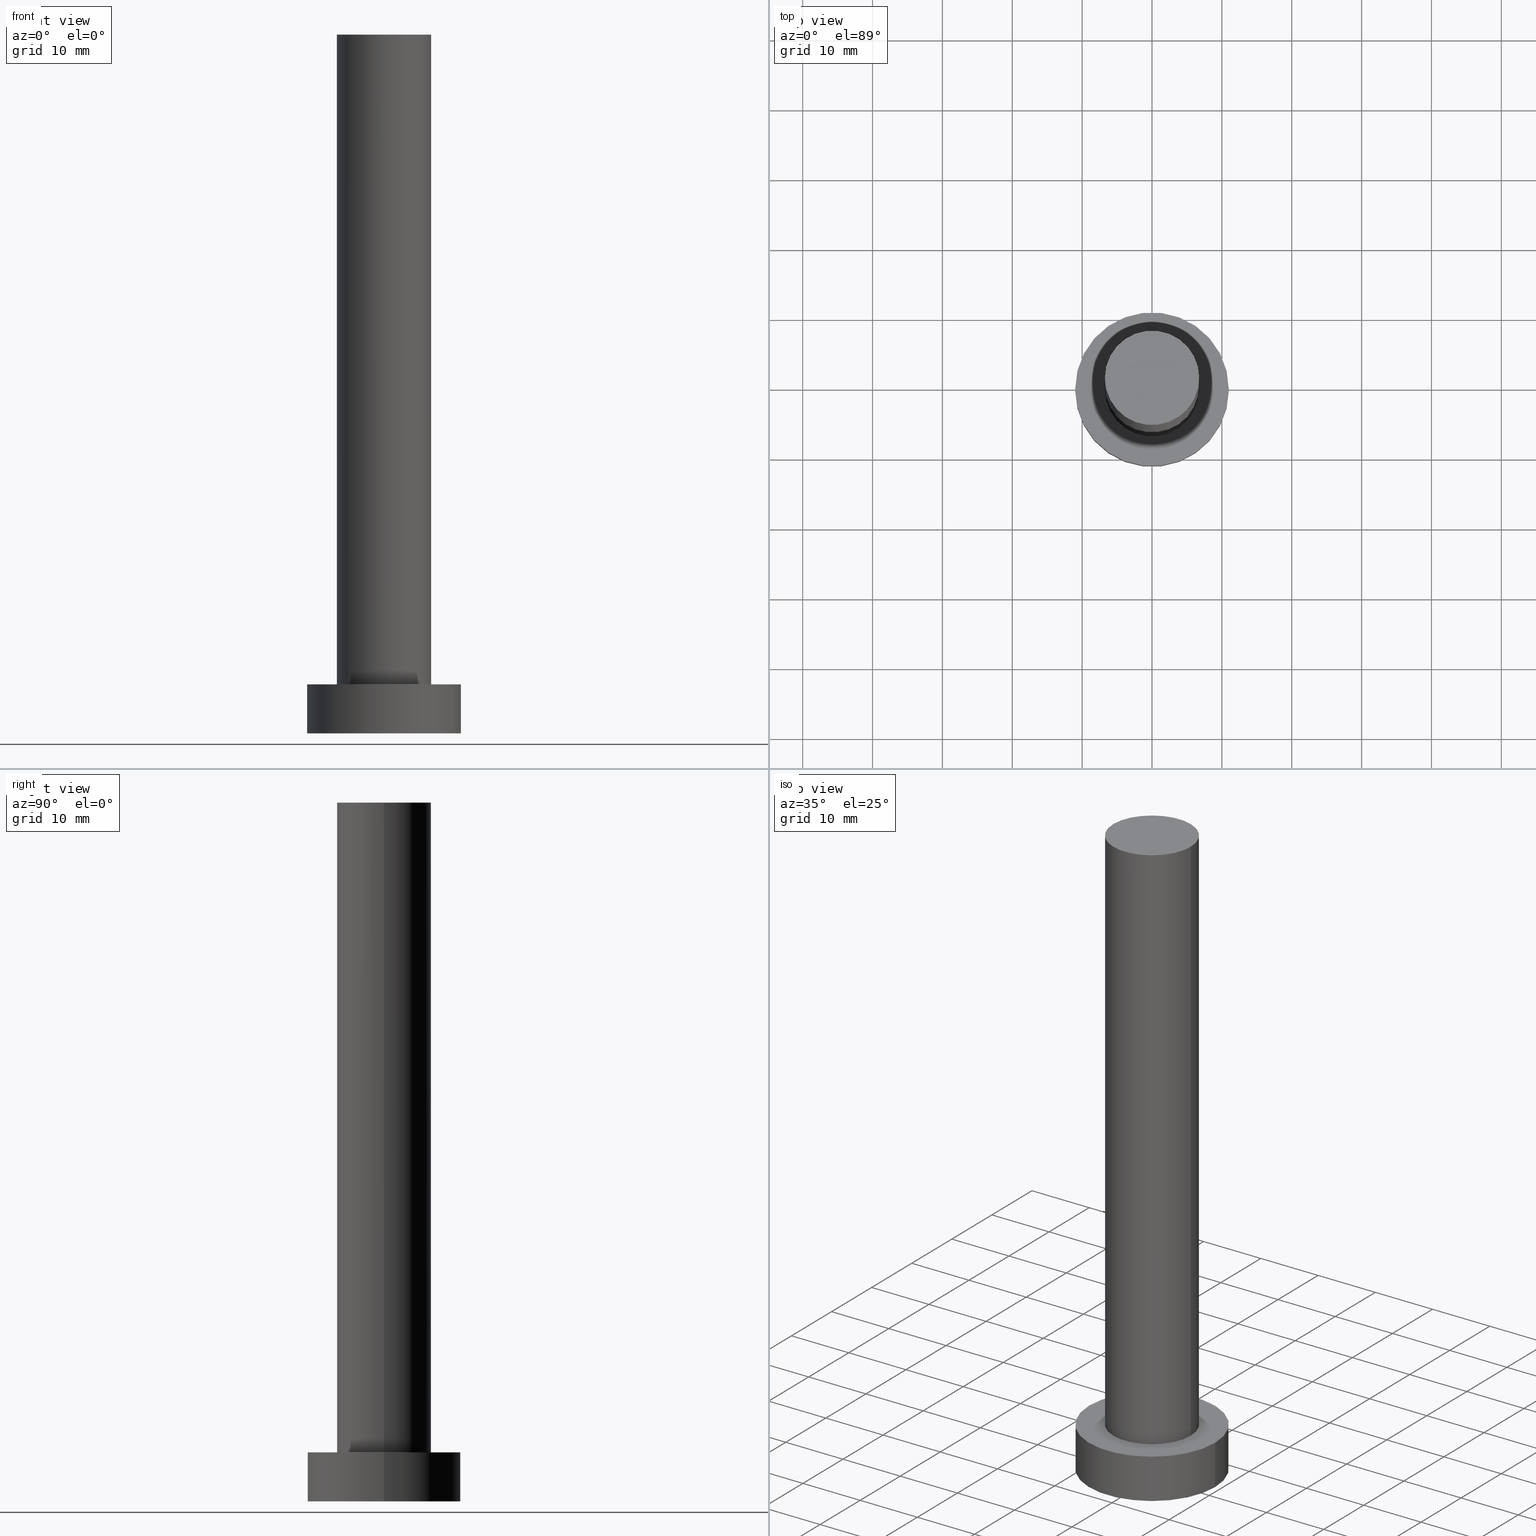
[diagram: canonical four-view strip — front | top / right | iso, engineering-drawing reading convention]
A machine part, canonical four-view strip (front | top / right | iso — engineering-drawing reading convention). The complete STEP part file that produces these views, byte-faithful:
ISO-10303-21;
HEADER;
FILE_DESCRIPTION (( 'STEP AP203' ),
    '1' );
FILE_NAME ('1d74.STEP',
    '2023-02-13T11:34:54',
    ( '' ),
    ( '' ),
    'SwSTEP 2.0',
    'SolidWorks 2019',
    '' );
FILE_SCHEMA (( 'CONFIG_CONTROL_DESIGN' ));
ENDSEC;

DATA;
#1 = CALENDAR_DATE ( 2023, 13, 2 ) ;
#2 = DIRECTION ( 'NONE',  ( 1.000000000000000000, 0.000000000000000000, 0.000000000000000000 ) ) ;
#3 = FACE_OUTER_BOUND ( 'NONE', #26, .T. ) ;
#4 = EDGE_CURVE ( 'NONE', #92, #205, #99, .T. ) ;
#5 = CARTESIAN_POINT ( 'NONE',  ( 6.750000000000000000, 8.266365894244632361E-16, 7.000000000000000000 ) ) ;
#6 = DIRECTION ( 'NONE',  ( -0.000000000000000000, -0.000000000000000000, -1.000000000000000000 ) ) ;
#7 = PLANE ( 'NONE',  #88 ) ;
#8 = CARTESIAN_POINT ( 'NONE',  ( 0.000000000000000000, 0.000000000000000000, 100.0000000000000000 ) ) ;
#9 = AXIS2_PLACEMENT_3D ( 'NONE', #241, #36, #2 ) ;
#10 = DIRECTION ( 'NONE',  ( 1.000000000000000000, 0.000000000000000000, 0.000000000000000000 ) ) ;
#11 = AXIS2_PLACEMENT_3D ( 'NONE', #167, #188, #249 ) ;
#12 = DIRECTION ( 'NONE',  ( -0.000000000000000000, -0.000000000000000000, -1.000000000000000000 ) ) ;
#13 = ORIENTED_EDGE ( 'NONE', *, *, #177, .T. ) ;
#14 = APPROVAL_STATUS ( 'not_yet_approved' ) ;
#15 = ORIENTED_EDGE ( 'NONE', *, *, #18, .T. ) ;
#16 = CARTESIAN_POINT ( 'NONE',  ( -6.750000000000000000, 0.000000000000000000, 7.000000000000000000 ) ) ;
#17 = PERSON_AND_ORGANIZATION_ROLE ( 'creator' ) ;
#18 = EDGE_CURVE ( 'NONE', #29, #95, #133, .T. ) ;
#19 = DIRECTION ( 'NONE',  ( -1.000000000000000000, 0.000000000000000000, 0.000000000000000000 ) ) ;
#20 = LOCAL_TIME ( 12, 34, 54.00000000000000000, #98 ) ;
#21 = EDGE_LOOP ( 'NONE', ( #113, #194 ) ) ;
#22 = CARTESIAN_POINT ( 'NONE',  ( -11.00000000000000000, 0.000000000000000000, 0.000000000000000000 ) ) ;
#23 = DIRECTION ( 'NONE',  ( 0.000000000000000000, 0.000000000000000000, 1.000000000000000000 ) ) ;
#24 = CARTESIAN_POINT ( 'NONE',  ( 0.000000000000000000, 0.000000000000000000, 100.0000000000000000 ) ) ;
#25 = PRODUCT_DEFINITION ( 'NEZN�M�', '', #244, #187 ) ;
#26 = EDGE_LOOP ( 'NONE', ( #75, #35, #15, #116 ) ) ;
#27 = DIRECTION ( 'NONE',  ( -0.000000000000000000, -0.000000000000000000, -1.000000000000000000 ) ) ;
#28 = AXIS2_PLACEMENT_3D ( 'NONE', #24, #190, #170 ) ;
#29 = VERTEX_POINT ( 'NONE', #5 ) ;
#30 = APPROVAL_STATUS ( 'not_yet_approved' ) ;
#31 = PRODUCT_DEFINITION_SHAPE ( 'NONE', 'NONE',  #25 ) ;
#32 = AXIS2_PLACEMENT_3D ( 'NONE', #219, #236, #221 ) ;
#33 = APPROVAL_ROLE ( '' ) ;
#34 = ORIENTED_EDGE ( 'NONE', *, *, #242, .T. ) ;
#35 = ORIENTED_EDGE ( 'NONE', *, *, #254, .T. ) ;
#36 = DIRECTION ( 'NONE',  ( 0.000000000000000000, 0.000000000000000000, 1.000000000000000000 ) ) ;
#37 = PERSON_AND_ORGANIZATION ( #125, #104 ) ;
#38 = CYLINDRICAL_SURFACE ( 'NONE', #189, 11.00000000000000000 ) ;
#39 = AXIS2_PLACEMENT_3D ( 'NONE', #134, #178, #79 ) ;
#40 = VECTOR ( 'NONE', #230, 1000.000000000000000 ) ;
#41 = DIRECTION ( 'NONE',  ( 0.000000000000000000, 0.000000000000000000, 1.000000000000000000 ) ) ;
#42 = CARTESIAN_POINT ( 'NONE',  ( -11.00000000000000000, 0.000000000000000000, 7.000000000000000000 ) ) ;
#43 = CARTESIAN_POINT ( 'NONE',  ( 0.000000000000000000, 0.000000000000000000, 0.000000000000000000 ) ) ;
#44 = CARTESIAN_POINT ( 'NONE',  ( 0.000000000000000000, 0.000000000000000000, 100.0000000000000000 ) ) ;
#45 = DIRECTION ( 'NONE',  ( 0.000000000000000000, 0.000000000000000000, 1.000000000000000000 ) ) ;
#46 = VERTEX_POINT ( 'NONE', #22 ) ;
#47 =( NAMED_UNIT ( * ) PLANE_ANGLE_UNIT ( ) SI_UNIT ( $, .RADIAN. ) );
#48 = ORIENTED_EDGE ( 'NONE', *, *, #224, .F. ) ;
#49 = APPLICATION_PROTOCOL_DEFINITION ( 'international standard', 'config_control_design', 1994, #183 ) ;
#50 = AXIS2_PLACEMENT_3D ( 'NONE', #163, #41, #185 ) ;
#51 = CARTESIAN_POINT ( 'NONE',  ( -11.00000000000000000, 0.000000000000000000, 7.000000000000000000 ) ) ;
#52 = CIRCLE ( 'NONE', #222, 6.750000000000000000 ) ;
#53 = CC_DESIGN_PERSON_AND_ORGANIZATION_ASSIGNMENT ( #115, #237, ( #244 ) ) ;
#54 = APPROVAL_ROLE ( '' ) ;
#55 = FACE_OUTER_BOUND ( 'NONE', #69, .T. ) ;
#56 = DATE_AND_TIME ( #155, #20 ) ;
#57 = DIRECTION ( 'NONE',  ( -0.000000000000000000, -0.000000000000000000, -1.000000000000000000 ) ) ;
#58 = DIRECTION ( 'NONE',  ( 0.000000000000000000, 0.000000000000000000, 1.000000000000000000 ) ) ;
#59 = AXIS2_PLACEMENT_3D ( 'NONE', #164, #161, #19 ) ;
#60 = ADVANCED_FACE ( 'NONE', ( #3 ), #85, .T. ) ;
#61 = CC_DESIGN_APPROVAL ( #137, ( #25 ) ) ;
#62 = CARTESIAN_POINT ( 'NONE',  ( 0.000000000000000000, 0.000000000000000000, 100.0000000000000000 ) ) ;
#63 = COORDINATED_UNIVERSAL_TIME_OFFSET ( 1, 0, .AHEAD. ) ;
#64 = DIRECTION ( 'NONE',  ( 0.000000000000000000, 0.000000000000000000, 1.000000000000000000 ) ) ;
#65 = MANIFOLD_SOLID_BREP ( 'P�idat vysunut�m3', #231 ) ;
#66 = EDGE_CURVE ( 'NONE', #92, #181, #145, .T. ) ;
#67 = FACE_OUTER_BOUND ( 'NONE', #175, .T. ) ;
#68 = DIRECTION ( 'NONE',  ( 0.000000000000000000, 0.000000000000000000, 1.000000000000000000 ) ) ;
#69 = EDGE_LOOP ( 'NONE', ( #199, #240, #13, #90 ) ) ;
#70 = CIRCLE ( 'NONE', #248, 11.00000000000000000 ) ;
#71 = EDGE_CURVE ( 'NONE', #181, #46, #218, .T. ) ;
#72 = DATE_AND_TIME ( #1, #132 ) ;
#73 = APPROVAL_PERSON_ORGANIZATION ( #239, #203, #54 ) ;
#74 = ADVANCED_BREP_SHAPE_REPRESENTATION ( '1d74', ( #65, #201 ), #102 ) ;
#75 = ORIENTED_EDGE ( 'NONE', *, *, #234, .F. ) ;
#76 = EDGE_CURVE ( 'NONE', #95, #29, #215, .T. ) ;
#77 = ORIENTED_EDGE ( 'NONE', *, *, #196, .T. ) ;
#78 = COORDINATED_UNIVERSAL_TIME_OFFSET ( 1, 0, .AHEAD. ) ;
#79 = DIRECTION ( 'NONE',  ( 1.000000000000000000, 0.000000000000000000, -0.000000000000000000 ) ) ;
#80 = DIRECTION ( 'NONE',  ( -0.000000000000000000, -0.000000000000000000, -1.000000000000000000 ) ) ;
#81 = CARTESIAN_POINT ( 'NONE',  ( 11.00000000000000000, 1.347111479062088405E-15, 7.000000000000000000 ) ) ;
#82 = ADVANCED_FACE ( 'NONE', ( #55 ), #38, .T. ) ;
#83 = SECURITY_CLASSIFICATION ( '', '', #96 ) ;
#84 = CC_DESIGN_DATE_AND_TIME_ASSIGNMENT ( #56, #114, ( #83 ) ) ;
#85 = CYLINDRICAL_SURFACE ( 'NONE', #235, 6.750000000000000000 ) ;
#86 = DIRECTION ( 'NONE',  ( 1.000000000000000000, 0.000000000000000000, 0.000000000000000000 ) ) ;
#87 = PERSON_AND_ORGANIZATION ( #125, #104 ) ;
#88 = AXIS2_PLACEMENT_3D ( 'NONE', #43, #64, #228 ) ;
#89 = LINE ( 'NONE', #149, #40 ) ;
#90 = ORIENTED_EDGE ( 'NONE', *, *, #71, .F. ) ;
#91 = APPLICATION_PROTOCOL_DEFINITION ( 'international standard', 'config_control_design', 1994, #227 ) ;
#92 = VERTEX_POINT ( 'NONE', #81 ) ;
#93 = PERSON_AND_ORGANIZATION_ROLE ( 'classification_officer' ) ;
#94 = APPROVAL_PERSON_ORGANIZATION ( #157, #148, #33 ) ;
#95 = VERTEX_POINT ( 'NONE', #16 ) ;
#96 = SECURITY_CLASSIFICATION_LEVEL ( 'unclassified' ) ;
#97 = VERTEX_POINT ( 'NONE', #121 ) ;
#98 = COORDINATED_UNIVERSAL_TIME_OFFSET ( 1, 0, .AHEAD. ) ;
#99 = LINE ( 'NONE', #103, #140 ) ;
#100 = SHAPE_DEFINITION_REPRESENTATION ( #31, #74 ) ;
#101 = CARTESIAN_POINT ( 'NONE',  ( 0.000000000000000000, 0.000000000000000000, 7.000000000000000000 ) ) ;
#102 =( GEOMETRIC_REPRESENTATION_CONTEXT ( 3 ) GLOBAL_UNCERTAINTY_ASSIGNED_CONTEXT ( ( #165 ) ) GLOBAL_UNIT_ASSIGNED_CONTEXT ( ( #251, #47, #108 ) ) REPRESENTATION_CONTEXT ( 'NONE', 'WORKASPACE' ) );
#103 = CARTESIAN_POINT ( 'NONE',  ( 11.00000000000000000, 1.347111479062088405E-15, 7.000000000000000000 ) ) ;
#104 = ORGANIZATION ( 'NEUR�EN�', 'NEUR�EN�', '' ) ;
#105 = CC_DESIGN_PERSON_AND_ORGANIZATION_ASSIGNMENT ( #233, #17, ( #244 ) ) ;
#106 = CYLINDRICAL_SURFACE ( 'NONE', #59, 11.00000000000000000 ) ;
#107 = ORIENTED_EDGE ( 'NONE', *, *, #196, .F. ) ;
#108 =( NAMED_UNIT ( * ) SI_UNIT ( $, .STERADIAN. ) SOLID_ANGLE_UNIT ( ) );
#109 = CARTESIAN_POINT ( 'NONE',  ( -6.750000000000000000, 0.000000000000000000, 100.0000000000000000 ) ) ;
#110 = AXIS2_PLACEMENT_3D ( 'NONE', #62, #58, #238 ) ;
#111 = DIRECTION ( 'NONE',  ( -1.000000000000000000, 0.000000000000000000, 0.000000000000000000 ) ) ;
#112 = PRODUCT_RELATED_PRODUCT_CATEGORY ( 'detail', '', ( #152 ) ) ;
#113 = ORIENTED_EDGE ( 'NONE', *, *, #224, .T. ) ;
#114 = DATE_TIME_ROLE ( 'classification_date' ) ;
#115 = PERSON_AND_ORGANIZATION ( #125, #104 ) ;
#116 = ORIENTED_EDGE ( 'NONE', *, *, #242, .F. ) ;
#117 = APPROVAL_DATE_TIME ( #159, #148 ) ;
#118 = CARTESIAN_POINT ( 'NONE',  ( 0.000000000000000000, 0.000000000000000000, 100.0000000000000000 ) ) ;
#119 = APPROVAL_DATE_TIME ( #198, #203 ) ;
#120 = ORIENTED_EDGE ( 'NONE', *, *, #177, .F. ) ;
#121 = CARTESIAN_POINT ( 'NONE',  ( 6.750000000000000000, 8.266365894244632361E-16, 100.0000000000000000 ) ) ;
#122 = ADVANCED_FACE ( 'NONE', ( #184, #197 ), #135, .T. ) ;
#123 = CIRCLE ( 'NONE', #11, 11.00000000000000000 ) ;
#124 = DIRECTION ( 'NONE',  ( -0.000000000000000000, -0.000000000000000000, -1.000000000000000000 ) ) ;
#125 = PERSON ( 'NEUR�EN�', 'NEUR�EN�', 'NEUR�EN�', ('NEUR�EN�'), ('NEUR�EN�'), ('NEUR�EN�') ) ;
#126 = DIRECTION ( 'NONE',  ( 1.000000000000000000, 0.000000000000000000, 0.000000000000000000 ) ) ;
#127 = LOCAL_TIME ( 12, 34, 54.00000000000000000, #179 ) ;
#128 = APPROVAL_ROLE ( '' ) ;
#129 = ADVANCED_FACE ( 'NONE', ( #202 ), #106, .T. ) ;
#130 = LINE ( 'NONE', #172, #154 ) ;
#131 = MECHANICAL_CONTEXT ( 'NONE', #227, 'mechanical' ) ;
#132 = LOCAL_TIME ( 12, 34, 54.00000000000000000, #153 ) ;
#133 = CIRCLE ( 'NONE', #50, 6.750000000000000000 ) ;
#134 = CARTESIAN_POINT ( 'NONE',  ( 0.000000000000000000, 0.000000000000000000, 7.000000000000000000 ) ) ;
#135 = PLANE ( 'NONE',  #39 ) ;
#136 = APPROVAL_STATUS ( 'not_yet_approved' ) ;
#137 = APPROVAL ( #30, 'NEUR�EN�' ) ;
#138 = DIRECTION ( 'NONE',  ( -1.000000000000000000, 0.000000000000000000, 0.000000000000000000 ) ) ;
#139 = CC_DESIGN_APPROVAL ( #203, ( #83 ) ) ;
#140 = VECTOR ( 'NONE', #57, 1000.000000000000000 ) ;
#141 = ORIENTED_EDGE ( 'NONE', *, *, #71, .T. ) ;
#142 = CARTESIAN_POINT ( 'NONE',  ( 0.000000000000000000, 0.000000000000000000, 0.000000000000000000 ) ) ;
#143 = ADVANCED_FACE ( 'NONE', ( #166 ), #243, .T. ) ;
#144 = CALENDAR_DATE ( 2023, 13, 2 ) ;
#145 = CIRCLE ( 'NONE', #32, 11.00000000000000000 ) ;
#146 = CYLINDRICAL_SURFACE ( 'NONE', #169, 6.750000000000000000 ) ;
#147 = EDGE_LOOP ( 'NONE', ( #171, #173 ) ) ;
#148 = APPROVAL ( #14, 'NEUR�EN�' ) ;
#149 = CARTESIAN_POINT ( 'NONE',  ( -6.750000000000000000, 0.000000000000000000, 100.0000000000000000 ) ) ;
#150 = ORIENTED_EDGE ( 'NONE', *, *, #76, .T. ) ;
#151 = ORIENTED_EDGE ( 'NONE', *, *, #234, .T. ) ;
#152 = PRODUCT ( '1d74', '1d74', '', ( #131 ) ) ;
#153 = COORDINATED_UNIVERSAL_TIME_OFFSET ( 1, 0, .AHEAD. ) ;
#154 = VECTOR ( 'NONE', #12, 1000.000000000000000 ) ;
#155 = CALENDAR_DATE ( 2023, 13, 2 ) ;
#156 = ORIENTED_EDGE ( 'NONE', *, *, #245, .F. ) ;
#157 = PERSON_AND_ORGANIZATION ( #125, #104 ) ;
#158 = EDGE_LOOP ( 'NONE', ( #212, #48, #141, #77 ) ) ;
#159 = DATE_AND_TIME ( #216, #180 ) ;
#160 = LOCAL_TIME ( 12, 34, 54.00000000000000000, #63 ) ;
#161 = DIRECTION ( 'NONE',  ( -0.000000000000000000, -0.000000000000000000, -1.000000000000000000 ) ) ;
#162 = CC_DESIGN_DATE_AND_TIME_ASSIGNMENT ( #72, #220, ( #25 ) ) ;
#163 = CARTESIAN_POINT ( 'NONE',  ( 0.000000000000000000, 0.000000000000000000, 7.000000000000000000 ) ) ;
#164 = CARTESIAN_POINT ( 'NONE',  ( 0.000000000000000000, 0.000000000000000000, 7.000000000000000000 ) ) ;
#165 = UNCERTAINTY_MEASURE_WITH_UNIT (LENGTH_MEASURE( 1.000000000000000082E-05 ), #251, 'distance_accuracy_value', 'NONE');
#166 = FACE_OUTER_BOUND ( 'NONE', #195, .T. ) ;
#167 = CARTESIAN_POINT ( 'NONE',  ( 0.000000000000000000, 0.000000000000000000, 7.000000000000000000 ) ) ;
#168 = PERSON_AND_ORGANIZATION_ROLE ( 'creator' ) ;
#169 = AXIS2_PLACEMENT_3D ( 'NONE', #8, #27, #111 ) ;
#170 = DIRECTION ( 'NONE',  ( 1.000000000000000000, 0.000000000000000000, 0.000000000000000000 ) ) ;
#171 = ORIENTED_EDGE ( 'NONE', *, *, #76, .F. ) ;
#172 = CARTESIAN_POINT ( 'NONE',  ( 6.750000000000000000, 8.266365894244632361E-16, 100.0000000000000000 ) ) ;
#173 = ORIENTED_EDGE ( 'NONE', *, *, #18, .F. ) ;
#174 = CC_DESIGN_APPROVAL ( #148, ( #244 ) ) ;
#175 = EDGE_LOOP ( 'NONE', ( #107, #120 ) ) ;
#176 = VECTOR ( 'NONE', #124, 1000.000000000000000 ) ;
#177 = EDGE_CURVE ( 'NONE', #205, #46, #211, .T. ) ;
#178 = DIRECTION ( 'NONE',  ( 0.000000000000000000, 0.000000000000000000, 1.000000000000000000 ) ) ;
#179 = COORDINATED_UNIVERSAL_TIME_OFFSET ( 1, 0, .AHEAD. ) ;
#180 = LOCAL_TIME ( 12, 34, 54.00000000000000000, #78 ) ;
#181 = VERTEX_POINT ( 'NONE', #42 ) ;
#182 = DIRECTION ( 'NONE',  ( -1.000000000000000000, 0.000000000000000000, 0.000000000000000000 ) ) ;
#183 = APPLICATION_CONTEXT ( 'configuration controlled 3d designs of mechanical parts and assemblies' ) ;
#184 = FACE_BOUND ( 'NONE', #147, .T. ) ;
#185 = DIRECTION ( 'NONE',  ( 1.000000000000000000, 0.000000000000000000, 0.000000000000000000 ) ) ;
#186 = DATE_AND_TIME ( #144, #160 ) ;
#187 = DESIGN_CONTEXT ( 'detailed design', #183, 'design' ) ;
#188 = DIRECTION ( 'NONE',  ( 0.000000000000000000, 0.000000000000000000, 1.000000000000000000 ) ) ;
#189 = AXIS2_PLACEMENT_3D ( 'NONE', #101, #80, #182 ) ;
#190 = DIRECTION ( 'NONE',  ( 0.000000000000000000, 0.000000000000000000, 1.000000000000000000 ) ) ;
#191 = ORIENTED_EDGE ( 'NONE', *, *, #254, .F. ) ;
#192 = APPROVAL_PERSON_ORGANIZATION ( #213, #137, #128 ) ;
#193 = DIRECTION ( 'NONE',  ( 1.000000000000000000, 0.000000000000000000, 0.000000000000000000 ) ) ;
#194 = ORIENTED_EDGE ( 'NONE', *, *, #66, .T. ) ;
#195 = EDGE_LOOP ( 'NONE', ( #229, #151 ) ) ;
#196 = EDGE_CURVE ( 'NONE', #46, #205, #70, .T. ) ;
#197 = FACE_OUTER_BOUND ( 'NONE', #21, .T. ) ;
#198 = DATE_AND_TIME ( #253, #127 ) ;
#199 = ORIENTED_EDGE ( 'NONE', *, *, #66, .F. ) ;
#200 = AXIS2_PLACEMENT_3D ( 'NONE', #142, #226, #126 ) ;
#201 = AXIS2_PLACEMENT_3D ( 'NONE', #207, #45, #193 ) ;
#202 = FACE_OUTER_BOUND ( 'NONE', #158, .T. ) ;
#203 = APPROVAL ( #136, 'NEUR�EN�' ) ;
#204 = CC_DESIGN_SECURITY_CLASSIFICATION ( #83, ( #244 ) ) ;
#205 = VERTEX_POINT ( 'NONE', #246 ) ;
#206 = CARTESIAN_POINT ( 'NONE',  ( 0.000000000000000000, 0.000000000000000000, 0.000000000000000000 ) ) ;
#207 = CARTESIAN_POINT ( 'NONE',  ( 0.000000000000000000, 0.000000000000000000, 0.000000000000000000 ) ) ;
#208 = CC_DESIGN_PERSON_AND_ORGANIZATION_ASSIGNMENT ( #87, #168, ( #25 ) ) ;
#209 = APPROVAL_DATE_TIME ( #186, #137 ) ;
#210 = FACE_OUTER_BOUND ( 'NONE', #255, .T. ) ;
#211 = CIRCLE ( 'NONE', #200, 11.00000000000000000 ) ;
#212 = ORIENTED_EDGE ( 'NONE', *, *, #4, .F. ) ;
#213 = PERSON_AND_ORGANIZATION ( #125, #104 ) ;
#214 = CC_DESIGN_PERSON_AND_ORGANIZATION_ASSIGNMENT ( #37, #93, ( #83 ) ) ;
#215 = CIRCLE ( 'NONE', #9, 6.750000000000000000 ) ;
#216 = CALENDAR_DATE ( 2023, 13, 2 ) ;
#217 = ADVANCED_FACE ( 'NONE', ( #67 ), #7, .F. ) ;
#218 = LINE ( 'NONE', #51, #176 ) ;
#219 = CARTESIAN_POINT ( 'NONE',  ( 0.000000000000000000, 0.000000000000000000, 7.000000000000000000 ) ) ;
#220 = DATE_TIME_ROLE ( 'creation_date' ) ;
#221 = DIRECTION ( 'NONE',  ( 1.000000000000000000, 0.000000000000000000, 0.000000000000000000 ) ) ;
#222 = AXIS2_PLACEMENT_3D ( 'NONE', #44, #68, #10 ) ;
#223 = CC_DESIGN_PERSON_AND_ORGANIZATION_ASSIGNMENT ( #247, #232, ( #152 ) ) ;
#224 = EDGE_CURVE ( 'NONE', #181, #92, #123, .T. ) ;
#225 = VERTEX_POINT ( 'NONE', #109 ) ;
#226 = DIRECTION ( 'NONE',  ( 0.000000000000000000, 0.000000000000000000, 1.000000000000000000 ) ) ;
#227 = APPLICATION_CONTEXT ( 'configuration controlled 3d designs of mechanical parts and assemblies' ) ;
#228 = DIRECTION ( 'NONE',  ( 1.000000000000000000, 0.000000000000000000, -0.000000000000000000 ) ) ;
#229 = ORIENTED_EDGE ( 'NONE', *, *, #245, .T. ) ;
#230 = DIRECTION ( 'NONE',  ( -0.000000000000000000, -0.000000000000000000, -1.000000000000000000 ) ) ;
#231 = CLOSED_SHELL ( 'NONE', ( #60, #82, #129, #122, #217, #250, #143 ) ) ;
#232 = PERSON_AND_ORGANIZATION_ROLE ( 'design_owner' ) ;
#233 = PERSON_AND_ORGANIZATION ( #125, #104 ) ;
#234 = EDGE_CURVE ( 'NONE', #97, #225, #52, .T. ) ;
#235 = AXIS2_PLACEMENT_3D ( 'NONE', #118, #6, #138 ) ;
#236 = DIRECTION ( 'NONE',  ( 0.000000000000000000, 0.000000000000000000, 1.000000000000000000 ) ) ;
#237 = PERSON_AND_ORGANIZATION_ROLE ( 'design_supplier' ) ;
#238 = DIRECTION ( 'NONE',  ( 1.000000000000000000, 0.000000000000000000, -0.000000000000000000 ) ) ;
#239 = PERSON_AND_ORGANIZATION ( #125, #104 ) ;
#240 = ORIENTED_EDGE ( 'NONE', *, *, #4, .T. ) ;
#241 = CARTESIAN_POINT ( 'NONE',  ( 0.000000000000000000, 0.000000000000000000, 7.000000000000000000 ) ) ;
#242 = EDGE_CURVE ( 'NONE', #225, #95, #89, .T. ) ;
#243 = PLANE ( 'NONE',  #110 ) ;
#244 = PRODUCT_DEFINITION_FORMATION_WITH_SPECIFIED_SOURCE ( 'LIBOVOLN�', '', #152, .NOT_KNOWN. ) ;
#245 = EDGE_CURVE ( 'NONE', #225, #97, #252, .T. ) ;
#246 = CARTESIAN_POINT ( 'NONE',  ( 11.00000000000000000, 1.347111479062088405E-15, 0.000000000000000000 ) ) ;
#247 = PERSON_AND_ORGANIZATION ( #125, #104 ) ;
#248 = AXIS2_PLACEMENT_3D ( 'NONE', #206, #23, #86 ) ;
#249 = DIRECTION ( 'NONE',  ( 1.000000000000000000, 0.000000000000000000, 0.000000000000000000 ) ) ;
#250 = ADVANCED_FACE ( 'NONE', ( #210 ), #146, .T. ) ;
#251 =( LENGTH_UNIT ( ) NAMED_UNIT ( * ) SI_UNIT ( .MILLI., .METRE. ) );
#252 = CIRCLE ( 'NONE', #28, 6.750000000000000000 ) ;
#253 = CALENDAR_DATE ( 2023, 13, 2 ) ;
#254 = EDGE_CURVE ( 'NONE', #97, #29, #130, .T. ) ;
#255 = EDGE_LOOP ( 'NONE', ( #191, #156, #34, #150 ) ) ;
ENDSEC;
END-ISO-10303-21;
